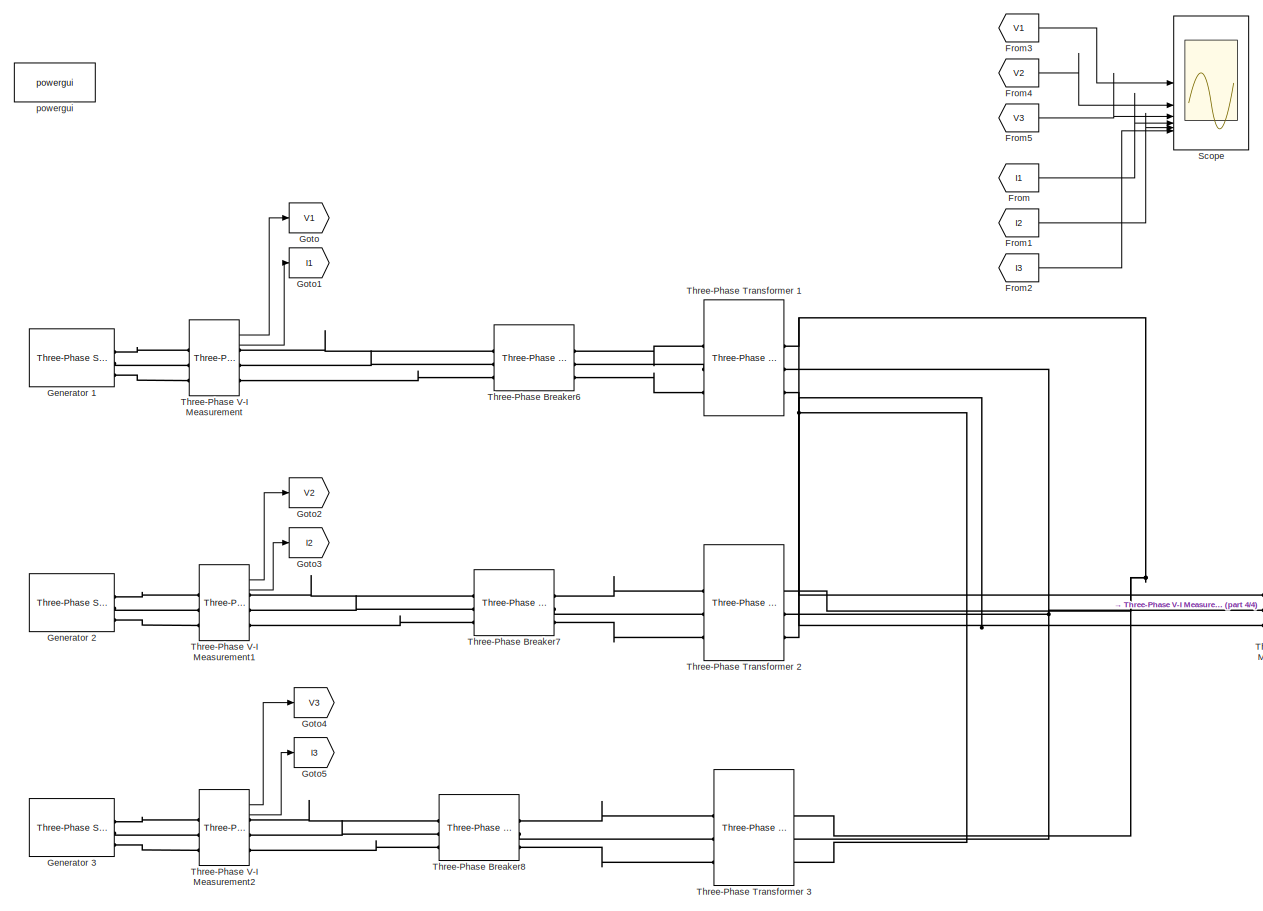
[diagram: root canvas - part 1/4, left side, full height]
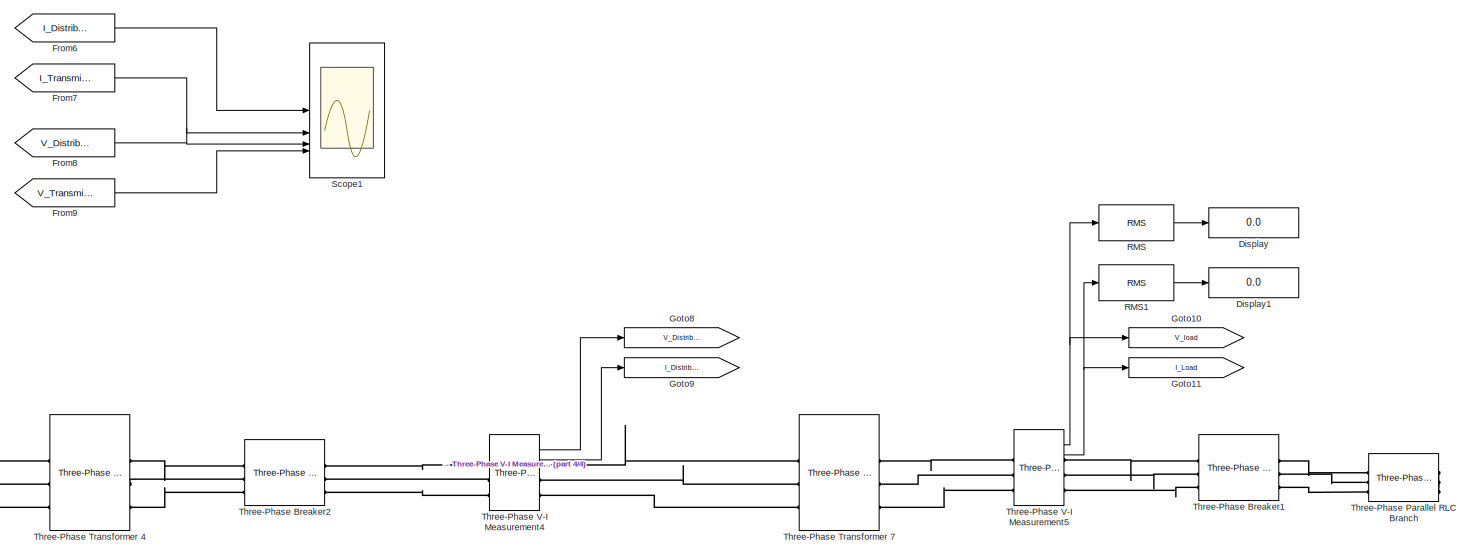
[diagram: root canvas - part 2/4, middle right region]
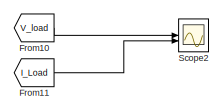
[diagram: root canvas - part 3/4, middle right region]
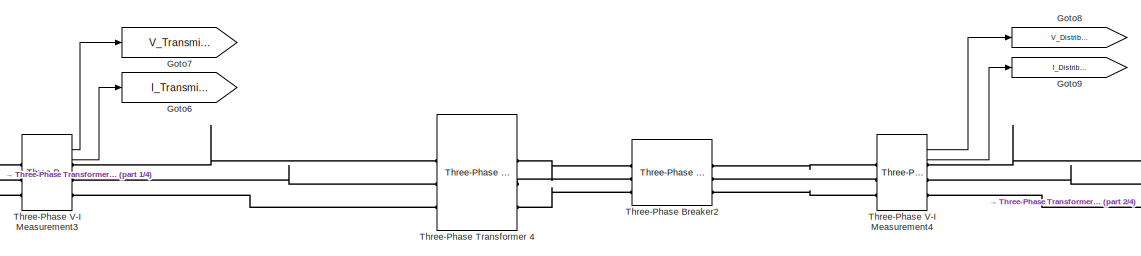
[diagram: root canvas - part 4/4, central region]
MODEL slx_25f2a3972c9d
KIND model
CONFIG AbsTol = auto
CONFIG EnableMultiTasking = off
CONFIG FixedStep = auto
CONFIG MaxStep = auto
CONFIG MinStep = auto
CONFIG RelTol = 1e-3
CONFIG SampleTimeConstraint = Unconstrained
CONFIG SolverName = VariableStepAuto
CONFIG StartTime = 0.0
CONFIG StopTime = 10.0
BLOCK [Display] Display
  Decimation = 1
BLOCK [Display] Display1
  Decimation = 1
BLOCK [From] From
  GotoTag = I1
BLOCK [From] From1
  GotoTag = I2
BLOCK [From] From10
  GotoTag = V_load
BLOCK [From] From11
  GotoTag = I_Load
BLOCK [From] From2
  GotoTag = I3
BLOCK [From] From3
  GotoTag = V1
BLOCK [From] From4
  GotoTag = V2
BLOCK [From] From5
  GotoTag = V3
BLOCK [From] From6
  GotoTag = I_Distribution
BLOCK [From] From7
  GotoTag = I_Transmission
BLOCK [From] From8
  GotoTag = V_Distribution
BLOCK [From] From9
  GotoTag = V_Transmission
BLOCK [Reference] Generator 1  REF=spsThreePhaseSourceLib/Three-Phase Source
  LibrarySourceBlock = sps_lib/Sources/Three-Phase Source
  SourceBlock = spsThreePhaseSourceLib/Three-Phase Source
  SourceType = Three-Phase Source
BLOCK [Reference] Generator 2  REF=spsThreePhaseSourceLib/Three-Phase Source
  LibrarySourceBlock = sps_lib/Sources/Three-Phase Source
  SourceBlock = spsThreePhaseSourceLib/Three-Phase Source
  SourceType = Three-Phase Source
BLOCK [Reference] Generator 3  REF=spsThreePhaseSourceLib/Three-Phase Source
  LibrarySourceBlock = sps_lib/Sources/Three-Phase Source
  SourceBlock = spsThreePhaseSourceLib/Three-Phase Source
  SourceType = Three-Phase Source
BLOCK [Goto] Goto
  GotoTag = V1
BLOCK [Goto] Goto1
  GotoTag = I1
BLOCK [Goto] Goto10
  GotoTag = V_load
BLOCK [Goto] Goto11
  GotoTag = I_Load
BLOCK [Goto] Goto2
  GotoTag = V2
BLOCK [Goto] Goto3
  GotoTag = I2
BLOCK [Goto] Goto4
  GotoTag = V3
BLOCK [Goto] Goto5
  GotoTag = I3
BLOCK [Goto] Goto6
  GotoTag = I_Transmission
BLOCK [Goto] Goto7
  GotoTag = V_Transmission
BLOCK [Goto] Goto8
  GotoTag = V_Distribution
BLOCK [Goto] Goto9
  GotoTag = I_Distribution
BLOCK [Reference] RMS  REF=dspstat3/RMS
  SourceBlock = dspstat3/RMS
  SourceType = RMS
  UserDataPersistent = on
BLOCK [Reference] RMS1  REF=dspstat3/RMS
  SourceBlock = dspstat3/RMS
  SourceType = RMS
  UserDataPersistent = on
BLOCK [Scope] Scope
  Floating = off
  NumInputPorts = 6
  ScopeSpecificationString = Simulink.scopes.TimeScopeBlockCfg('CurrentConfiguration', extmgr.ConfigurationSet(extmgr.Configuration('Core','General UI',true),extmgr.Configuration('Core','Source UI',true),extmgr.Configuration('Sources','WiredSimulink',true),extmgr.Configuration('Visuals','Time Domain',true,'SerializedDisplays',{struct('MinYLimReal','-2.53453','MaxYLimReal','-1.23724','YLabelReal','','MinYLimMag','0.00000','Max...<+5401ch>
BLOCK [Scope] Scope1
  Floating = off
  NumInputPorts = 4
  ScopeSpecificationString = Simulink.scopes.TimeScopeBlockCfg('CurrentConfiguration', extmgr.ConfigurationSet(extmgr.Configuration('Core','General UI',true),extmgr.Configuration('Core','Source UI',true),extmgr.Configuration('Sources','WiredSimulink',true,'DataLoggingVariableName','ScopeData1'),extmgr.Configuration('Visuals','Time Domain',true,'SerializedDisplays',{struct('MinYLimReal','-4.3721','MaxYLimReal','3.6435','YLabel...<+3831ch>
BLOCK [Scope] Scope2
  Floating = off
  NumInputPorts = 2
  ScopeSpecificationString = Simulink.scopes.TimeScopeBlockCfg('CurrentConfiguration', extmgr.ConfigurationSet(extmgr.Configuration('Core','General UI',true),extmgr.Configuration('Core','Source UI',true),extmgr.Configuration('Sources','WiredSimulink',true,'DataLoggingVariableName','ScopeData2'),extmgr.Configuration('Visuals','Time Domain',true,'SerializedDisplays',{struct('MinYLimReal','-407.22997','MaxYLimReal','407.25846','...<+2268ch>
BLOCK [Reference] Three-Phase Breaker1  REF=spsThreePhaseBreakerLib/Three-Phase Breaker
  LibrarySourceBlock = sps_lib/Power Grid Elements/Three-Phase Breaker
  SourceBlock = spsThreePhaseBreakerLib/Three-Phase Breaker
  SourceType = Three-Phase Breaker
BLOCK [Reference] Three-Phase Breaker2  REF=spsThreePhaseBreakerLib/Three-Phase Breaker
  LibrarySourceBlock = sps_lib/Power Grid Elements/Three-Phase Breaker
  SourceBlock = spsThreePhaseBreakerLib/Three-Phase Breaker
  SourceType = Three-Phase Breaker
BLOCK [Reference] Three-Phase Breaker6  REF=spsThreePhaseBreakerLib/Three-Phase Breaker
  LibrarySourceBlock = sps_lib/Power Grid Elements/Three-Phase Breaker
  SourceBlock = spsThreePhaseBreakerLib/Three-Phase Breaker
  SourceType = Three-Phase Breaker
BLOCK [Reference] Three-Phase Breaker7  REF=spsThreePhaseBreakerLib/Three-Phase Breaker
  LibrarySourceBlock = sps_lib/Power Grid Elements/Three-Phase Breaker
  SourceBlock = spsThreePhaseBreakerLib/Three-Phase Breaker
  SourceType = Three-Phase Breaker
BLOCK [Reference] Three-Phase Breaker8  REF=spsThreePhaseBreakerLib/Three-Phase Breaker
  LibrarySourceBlock = sps_lib/Power Grid Elements/Three-Phase Breaker
  SourceBlock = spsThreePhaseBreakerLib/Three-Phase Breaker
  SourceType = Three-Phase Breaker
BLOCK [Reference] Three-Phase Parallel RLC Branch  REF=spsThreePhaseParallelRLCBranchLib/Three-Phase
Parallel RLC Branch
  AttributesFormatString = \n
  LibrarySourceBlock = sps_lib/Passives/Three-Phase\nParallel RLC Branch
  SourceBlock = spsThreePhaseParallelRLCBranchLib/Three-Phase\nParallel RLC Branch
  SourceType = Three-Phase Parallel RLC Branch
BLOCK [Reference] Three-Phase Transformer 1  REF=spsThreePhaseTransformerTwoWindingsLib/Three-Phase
Transformer
(Two Windings)
  LibrarySourceBlock = sps_lib/Power Grid Elements/Three-Phase\nTransformer\n(Two Windings)
  SourceBlock = spsThreePhaseTransformerTwoWindingsLib/Three-Phase\nTransformer\n(Two Windings)
  SourceType = Three-Phase Transformer (Two Windings)
BLOCK [Reference] Three-Phase Transformer 2  REF=spsThreePhaseTransformerTwoWindingsLib/Three-Phase
Transformer
(Two Windings)
  LibrarySourceBlock = sps_lib/Power Grid Elements/Three-Phase\nTransformer\n(Two Windings)
  SourceBlock = spsThreePhaseTransformerTwoWindingsLib/Three-Phase\nTransformer\n(Two Windings)
  SourceType = Three-Phase Transformer (Two Windings)
BLOCK [Reference] Three-Phase Transformer 3  REF=spsThreePhaseTransformerTwoWindingsLib/Three-Phase
Transformer
(Two Windings)
  LibrarySourceBlock = sps_lib/Power Grid Elements/Three-Phase\nTransformer\n(Two Windings)
  SourceBlock = spsThreePhaseTransformerTwoWindingsLib/Three-Phase\nTransformer\n(Two Windings)
  SourceType = Three-Phase Transformer (Two Windings)
BLOCK [Reference] Three-Phase Transformer 4  REF=spsThreePhaseTransformerTwoWindingsLib/Three-Phase
Transformer
(Two Windings)
  LibrarySourceBlock = sps_lib/Power Grid Elements/Three-Phase\nTransformer\n(Two Windings)
  SourceBlock = spsThreePhaseTransformerTwoWindingsLib/Three-Phase\nTransformer\n(Two Windings)
  SourceType = Three-Phase Transformer (Two Windings)
BLOCK [Reference] Three-Phase Transformer 7  REF=spsThreePhaseTransformerTwoWindingsLib/Three-Phase
Transformer
(Two Windings)
  LibrarySourceBlock = sps_lib/Power Grid Elements/Three-Phase\nTransformer\n(Two Windings)
  SourceBlock = spsThreePhaseTransformerTwoWindingsLib/Three-Phase\nTransformer\n(Two Windings)
  SourceType = Three-Phase Transformer (Two Windings)
BLOCK [Reference] Three-Phase V-I Measurement  REF=spsThreePhaseVIMeasurementLib/Three-Phase
V-I Measurement
  LibrarySourceBlock = sps_lib/Sensors and Measurements/Three-Phase\nV-I Measurement
  SourceBlock = spsThreePhaseVIMeasurementLib/Three-Phase\nV-I Measurement
  SourceType = Three-Phase VI Measurement
BLOCK [Reference] Three-Phase V-I Measurement1  REF=spsThreePhaseVIMeasurementLib/Three-Phase
V-I Measurement
  LibrarySourceBlock = sps_lib/Sensors and Measurements/Three-Phase\nV-I Measurement
  SourceBlock = spsThreePhaseVIMeasurementLib/Three-Phase\nV-I Measurement
  SourceType = Three-Phase VI Measurement
BLOCK [Reference] Three-Phase V-I Measurement2  REF=spsThreePhaseVIMeasurementLib/Three-Phase
V-I Measurement
  LibrarySourceBlock = sps_lib/Sensors and Measurements/Three-Phase\nV-I Measurement
  SourceBlock = spsThreePhaseVIMeasurementLib/Three-Phase\nV-I Measurement
  SourceType = Three-Phase VI Measurement
BLOCK [Reference] Three-Phase V-I Measurement3  REF=spsThreePhaseVIMeasurementLib/Three-Phase
V-I Measurement
  LibrarySourceBlock = sps_lib/Sensors and Measurements/Three-Phase\nV-I Measurement
  SourceBlock = spsThreePhaseVIMeasurementLib/Three-Phase\nV-I Measurement
  SourceType = Three-Phase VI Measurement
BLOCK [Reference] Three-Phase V-I Measurement4  REF=spsThreePhaseVIMeasurementLib/Three-Phase
V-I Measurement
  LibrarySourceBlock = sps_lib/Sensors and Measurements/Three-Phase\nV-I Measurement
  SourceBlock = spsThreePhaseVIMeasurementLib/Three-Phase\nV-I Measurement
  SourceType = Three-Phase VI Measurement
BLOCK [Reference] Three-Phase V-I Measurement5  REF=spsThreePhaseVIMeasurementLib/Three-Phase
V-I Measurement
  LibrarySourceBlock = sps_lib/Sensors and Measurements/Three-Phase\nV-I Measurement
  SourceBlock = spsThreePhaseVIMeasurementLib/Three-Phase\nV-I Measurement
  SourceType = Three-Phase VI Measurement
BLOCK [Reference] powergui  REF=sps_lib/powergui
  LibrarySourceBlock = sps_lib/powergui
  Priority = 1
  SourceBlock = sps_lib/powergui
  SourceType = PSB option menu block
LINE From10:1 -> Scope2:1
LINE From11:1 -> Scope2:2
LINE From1:1 -> Scope:5
LINE From2:1 -> Scope:6
LINE From3:1 -> Scope:1
LINE From4:1 -> Scope:2
LINE From5:1 -> Scope:3
LINE From6:1 -> Scope1:1
LINE From7:1 -> Scope1:2
LINE From8:1 -> Scope1:3
LINE From9:1 -> Scope1:4
LINE From:1 -> Scope:4
LINE RMS1:1 -> Display1:1
LINE RMS:1 -> Display:1
LINE Three-Phase V-I Measurement1:1 -> Goto2:1
LINE Three-Phase V-I Measurement1:2 -> Goto3:1
LINE Three-Phase V-I Measurement2:1 -> Goto4:1
LINE Three-Phase V-I Measurement2:2 -> Goto5:1
LINE Three-Phase V-I Measurement3:1 -> Goto7:1
LINE Three-Phase V-I Measurement3:2 -> Goto6:1
LINE Three-Phase V-I Measurement4:1 -> Goto8:1
LINE Three-Phase V-I Measurement4:2 -> Goto9:1
NET Three-Phase V-I Measurement5:1 -> Goto10:1, RMS:1
NET Three-Phase V-I Measurement5:2 -> Goto11:1, RMS1:1
LINE Three-Phase V-I Measurement:1 -> Goto:1
LINE Three-Phase V-I Measurement:2 -> Goto1:1
PLINE Generator 1:RConn1 -- Three-Phase V-I Measurement:LConn1
PLINE Generator 1:RConn2 -- Three-Phase V-I Measurement:LConn2
PLINE Generator 1:RConn3 -- Three-Phase V-I Measurement:LConn3
PLINE Generator 2:RConn1 -- Three-Phase V-I Measurement1:LConn1
PLINE Generator 2:RConn2 -- Three-Phase V-I Measurement1:LConn2
PLINE Generator 2:RConn3 -- Three-Phase V-I Measurement1:LConn3
PLINE Generator 3:RConn1 -- Three-Phase V-I Measurement2:LConn1
PLINE Generator 3:RConn2 -- Three-Phase V-I Measurement2:LConn2
PLINE Generator 3:RConn3 -- Three-Phase V-I Measurement2:LConn3
PLINE Three-Phase Breaker1:LConn1 -- Three-Phase V-I Measurement5:RConn1
PLINE Three-Phase Breaker1:LConn2 -- Three-Phase V-I Measurement5:RConn2
PLINE Three-Phase Breaker1:LConn3 -- Three-Phase V-I Measurement5:RConn3
PLINE Three-Phase Breaker1:RConn1 -- Three-Phase Parallel RLC Branch:LConn1
PLINE Three-Phase Breaker1:RConn2 -- Three-Phase Parallel RLC Branch:LConn2
PLINE Three-Phase Breaker1:RConn3 -- Three-Phase Parallel RLC Branch:LConn3
PLINE Three-Phase Breaker2:LConn1 -- Three-Phase Transformer 4:RConn1
PLINE Three-Phase Breaker2:LConn2 -- Three-Phase Transformer 4:RConn2
PLINE Three-Phase Breaker2:LConn3 -- Three-Phase Transformer 4:RConn3
PLINE Three-Phase Breaker2:RConn1 -- Three-Phase V-I Measurement4:LConn1
PLINE Three-Phase Breaker2:RConn2 -- Three-Phase V-I Measurement4:LConn2
PLINE Three-Phase Breaker2:RConn3 -- Three-Phase V-I Measurement4:LConn3
PLINE Three-Phase Breaker6:LConn1 -- Three-Phase V-I Measurement:RConn1
PLINE Three-Phase Breaker6:LConn2 -- Three-Phase V-I Measurement:RConn2
PLINE Three-Phase Breaker6:LConn3 -- Three-Phase V-I Measurement:RConn3
PLINE Three-Phase Breaker6:RConn1 -- Three-Phase Transformer 1:LConn1
PLINE Three-Phase Breaker6:RConn2 -- Three-Phase Transformer 1:LConn2
PLINE Three-Phase Breaker6:RConn3 -- Three-Phase Transformer 1:LConn3
PLINE Three-Phase Breaker7:LConn1 -- Three-Phase V-I Measurement1:RConn1
PLINE Three-Phase Breaker7:LConn2 -- Three-Phase V-I Measurement1:RConn2
PLINE Three-Phase Breaker7:LConn3 -- Three-Phase V-I Measurement1:RConn3
PLINE Three-Phase Breaker7:RConn1 -- Three-Phase Transformer 2:LConn1
PLINE Three-Phase Breaker7:RConn2 -- Three-Phase Transformer 2:LConn2
PLINE Three-Phase Breaker7:RConn3 -- Three-Phase Transformer 2:LConn3
PLINE Three-Phase Breaker8:LConn1 -- Three-Phase V-I Measurement2:RConn1
PLINE Three-Phase Breaker8:LConn2 -- Three-Phase V-I Measurement2:RConn2
PLINE Three-Phase Breaker8:LConn3 -- Three-Phase V-I Measurement2:RConn3
PLINE Three-Phase Breaker8:RConn1 -- Three-Phase Transformer 3:LConn1
PLINE Three-Phase Breaker8:RConn2 -- Three-Phase Transformer 3:LConn2
PLINE Three-Phase Breaker8:RConn3 -- Three-Phase Transformer 3:LConn3
PNET net1: Three-Phase Parallel RLC Branch:RConn1 -- Three-Phase Parallel RLC Branch:RConn2 -- Three-Phase Parallel RLC Branch:RConn3
PNET net2: Three-Phase Transformer 1:RConn1 -- Three-Phase Transformer 2:RConn1 -- Three-Phase Transformer 3:RConn1 -- Three-Phase V-I Measurement3:LConn1
PNET net3: Three-Phase Transformer 1:RConn2 -- Three-Phase Transformer 2:RConn2 -- Three-Phase Transformer 3:RConn2 -- Three-Phase V-I Measurement3:LConn2
PNET net4: Three-Phase Transformer 1:RConn3 -- Three-Phase Transformer 2:RConn3 -- Three-Phase Transformer 3:RConn3 -- Three-Phase V-I Measurement3:LConn3
PLINE Three-Phase Transformer 4:LConn1 -- Three-Phase V-I Measurement3:RConn1
PLINE Three-Phase Transformer 4:LConn2 -- Three-Phase V-I Measurement3:RConn2
PLINE Three-Phase Transformer 4:LConn3 -- Three-Phase V-I Measurement3:RConn3
PLINE Three-Phase Transformer 7:LConn1 -- Three-Phase V-I Measurement4:RConn1
PLINE Three-Phase Transformer 7:LConn2 -- Three-Phase V-I Measurement4:RConn2
PLINE Three-Phase Transformer 7:LConn3 -- Three-Phase V-I Measurement4:RConn3
PLINE Three-Phase Transformer 7:RConn1 -- Three-Phase V-I Measurement5:LConn1
PLINE Three-Phase Transformer 7:RConn2 -- Three-Phase V-I Measurement5:LConn2
PLINE Three-Phase Transformer 7:RConn3 -- Three-Phase V-I Measurement5:LConn3
note: NET lines group one-source signal fan-out (src -> all destinations, sorted); 1:1 wires keep LINE; PNET lines group multi-terminal physical nets as a canonical sorted terminal list (undirected conserving connections); 2-terminal nets keep the pairwise PLINE form
